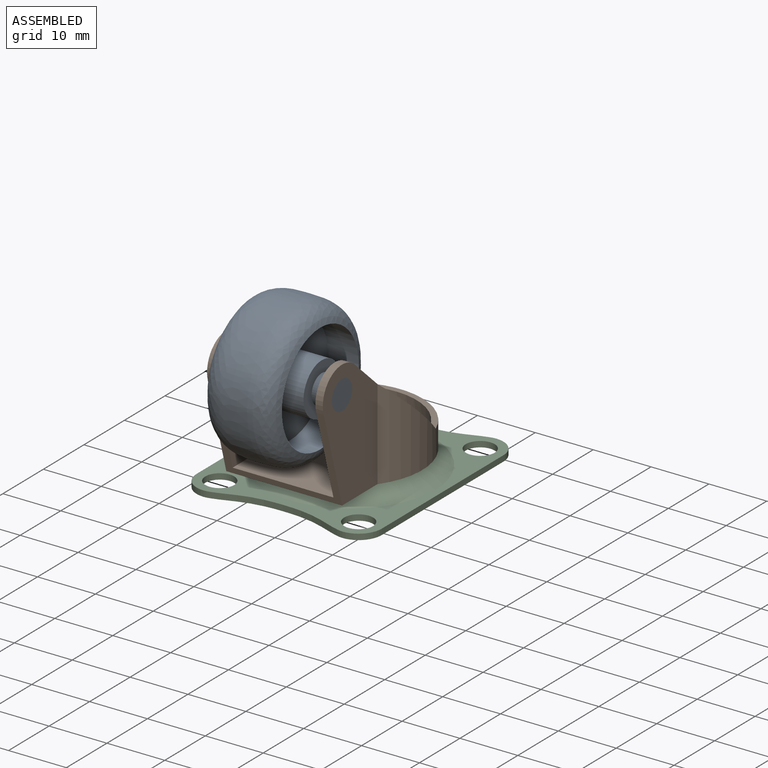
[diagram: assembled view]
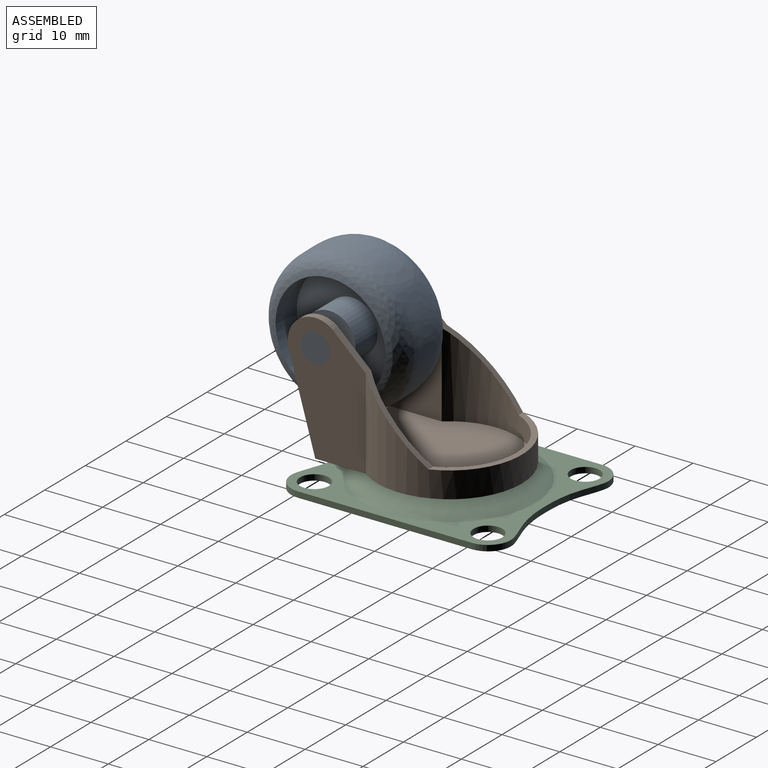
[diagram: assembled view, second angle]
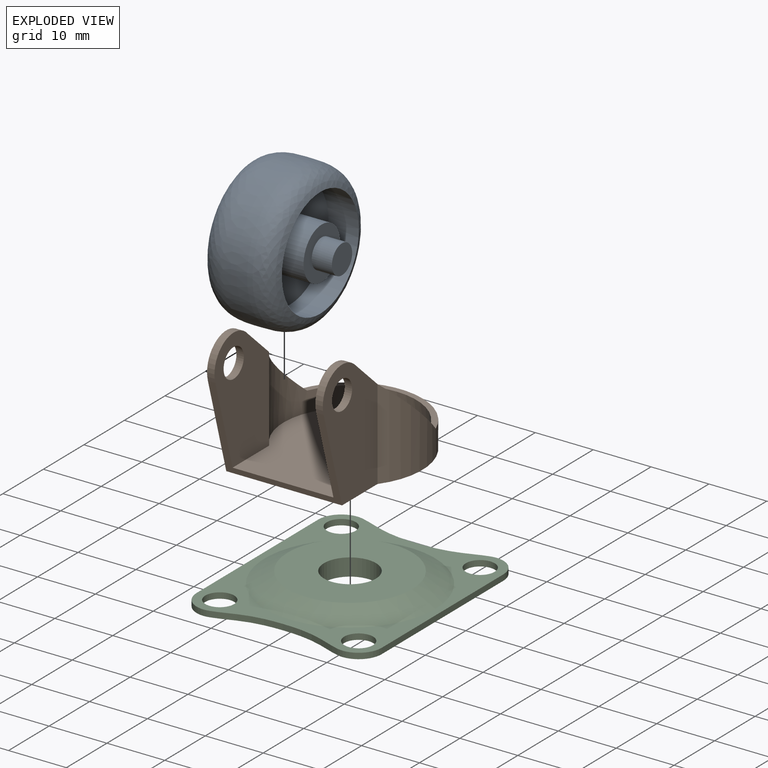
[diagram: exploded view]
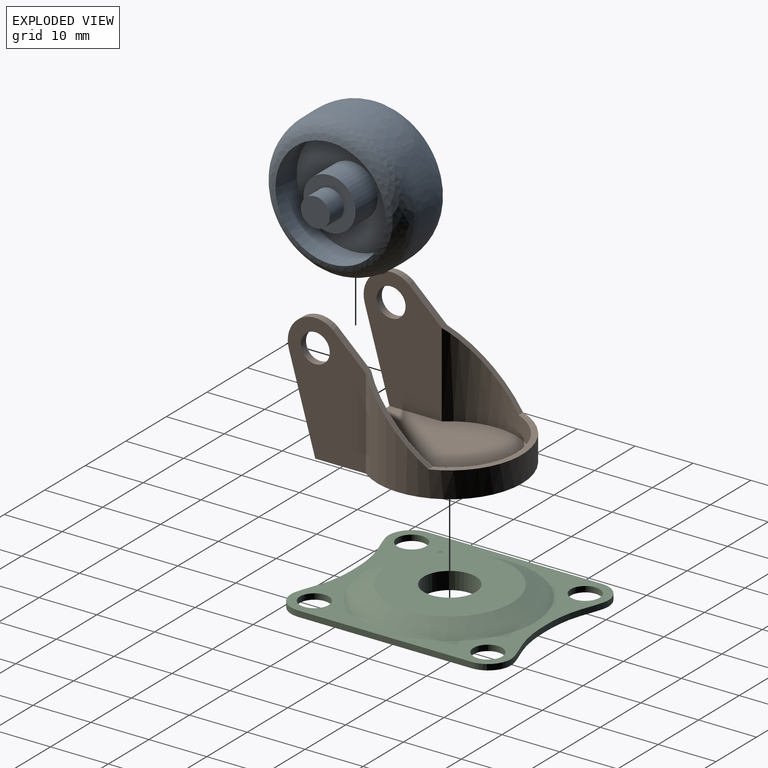
[diagram: exploded view, second angle]
ASSEMBLY  parts=3 mates=2
PART A: 15 faces, bbox 20x25.7x25.7 mm
  f0: cylinder r=12.5mm len=25mm, axis (-1,0,0), area 78.5mm2, adj f9,f10
  f1: cylinder r=4.5mm len=9mm, axis (-1,0,0), area 155.5mm2, adj f3,f4
  f2: cylinder r=9.5mm len=19mm, axis (-1,0,0), area 313.4mm2, adj f3,f10
  f3: plane 19x19mm, normal (-1,0,0), area 219.9mm2, adj f1,f2
  f4: plane 9x9mm, normal (-1,0,0), area 44mm2, adj f1,f14
  f5: cylinder r=4.5mm len=9mm, axis (1,0,0), area 155.5mm2, adj f7,f8
  f6: cylinder r=9.5mm len=19mm, axis (1,0,0), area 313.4mm2, adj f7,f9
  f7: plane 19x19mm, normal (1,0,0), area 219.9mm2, adj f5,f6
  f8: plane 9x9mm, normal (1,0,0), area 44mm2, adj f5,f12
  f9: bspline ~25.65x25.65mm, area 524.6mm2, adj f0,f6
  f10: bspline ~25.65x25.65mm, area 524.6mm2, adj f0,f2
  f11: plane 5x5mm, normal (1,0,0), area 19.6mm2, adj f12
  f12: cylinder r=2.5mm len=5mm, axis (-1,0,0), area 55mm2, adj f8,f11
  f13: plane 5x5mm, normal (-1,0,0), area 19.6mm2, adj f14
  f14: cylinder r=2.5mm len=5mm, axis (1,0,0), area 55mm2, adj f4,f13
PART B: 18 faces, bbox 25x33.5x25.5 mm
  f0: cylinder r=12.5mm len=25mm, axis (0,0,-1), area 392.9mm2, adj f1,f6,f7,f8,f12,f13
  f1: plane 28.75x25mm, normal (0,0,-1), area 532.4mm2, adj f0,f6,f7,f9,f17
  f2: cylinder r=11.5mm len=23mm, axis (0,0,-1), area 329.9mm2, adj f3,f4,f5,f8,f12,f13
  f3: plane 28.04x23mm, normal (0,0,1), area 524.6mm2, adj f2,f4,f5,f9
  f4: plane 21x13.5mm, normal (-1,0,0), area 201.7mm2, adj f2,f3,f9,f11,f12,f14
  f5: plane 21x13.5mm, normal (1,0,0), area 201.7mm2, adj f2,f3,f9,f10,f13,f15
  f6: plane 22x13.5mm, normal (-1,0,0), area 210.6mm2, adj f0,f1,f9,f10,f13,f15
  f7: plane 22x13.5mm, normal (1,0,0), area 210.6mm2, adj f0,f1,f9,f11,f12,f14
  f8: plane 23.32x8mm, normal (0,0,1), area 28.5mm2, adj f0,f2,f12,f13
  f9: plane 20x15.86mm, normal (0,-0.96,-0.28), area 60.5mm2, adj f1,f3,f4,f5,f6,f7,f10,f11
  f10: cylinder r=4.75mm len=8.24mm, axis (1,0,0), area 16.4mm2, adj f5,f6,f9,f13
  f11: cylinder r=4.75mm len=8.24mm, axis (1,0,0), area 16.4mm2, adj f4,f7,f9,f12
  f12: plane 17.26x15.97mm, normal (0,0.68,0.73), area 26.5mm2, adj f0,f2,f4,f7,f8,f11
  f13: plane 17.26x15.97mm, normal (0,0.68,0.73), area 26.5mm2, adj f0,f2,f5,f6,f8,f10
  f14: cylinder r=2.5mm len=5mm, axis (1,0,0), area 20.1mm2, adj f4,f7
  f15: cylinder r=2.5mm len=5mm, axis (1,0,0), area 20.1mm2, adj f5,f6
  f16: plane 9x9mm, normal (0,0,-1), area 63.6mm2, adj f17
  f17: cylinder r=4.5mm len=9mm, axis (0,0,1), area 99mm2, adj f1,f16
PART C: 19 faces, bbox 32x38x3 mm
  f0: cylinder r=4mm len=4mm, axis (0,0,-1), area 6.3mm2, adj f1,f13,f14,f15
  f1: extruded ~12x2.5mm, area 12.3mm2, adj f0,f2,f14,f15
  f2: extruded ~12x2.5mm, area 12.3mm2, adj f1,f3,f14,f15
  f3: cylinder r=4mm len=4mm, axis (0,0,-1), area 6.3mm2, adj f2,f4,f14,f15
  f4: plane 30x1mm, normal (-1,0,0), area 30mm2, adj f3,f5,f14,f15
  f5: cylinder r=4mm len=4mm, axis (0,0,-1), area 6.3mm2, adj f4,f6,f14,f15
  f6: extruded ~12x2.5mm, area 12.3mm2, adj f5,f7,f14,f15
  f7: extruded ~12x2.5mm, area 12.3mm2, adj f6,f8,f14,f15
  f8: cylinder r=4mm len=4mm, axis (0,0,-1), area 6.3mm2, adj f7,f13,f14,f15
  f9: cylinder r=2.5mm len=5mm, axis (0,0,-1), area 15.7mm2, adj f14,f15
  f10: cylinder r=2.5mm len=5mm, axis (0,0,-1), area 15.7mm2, adj f14,f15
  f11: cylinder r=2.5mm len=5mm, axis (0,0,-1), area 15.7mm2, adj f14,f15
  f12: cylinder r=2.5mm len=5mm, axis (0,0,-1), area 15.7mm2, adj f14,f15
  f13: plane 30x1mm, normal (1,0,0), area 30mm2, adj f0,f8,f14,f15
  f14: plane 38x32mm, normal (0,0,1), area 365.5mm2, adj f0,f1,f2,f3,f4,f5,f6,f7
  f15: plane 38x32mm, normal (0,0,-1), area 985.4mm2, adj f0,f1,f2,f3,f4,f5,f6,f7
  f16: plane 21.5x21.5mm, normal (0,0,1), area 299.4mm2, adj f17,f18
  f17: cone r=10.75mm half-angle=63.4deg, axis (0,0,-1), area 358.3mm2, adj f14,f16
  f18: cylinder r=4.5mm len=9mm, axis (0,0,1), area 84.8mm2, adj f15,f16
PLACE A t=(-6.5,6.29,0.06)mm
PLACE B t=(0,0,-0.5)mm
PLACE C t=(0,0,-0.5)mm
MATE revolute A.f0 <-> B.f10  axis (1,0,0) through (10,-16.25,20.25)mm
MATE revolute B.f17 <-> C.f18  axis (0,0,-1) through (0,0,-0.5)mm
